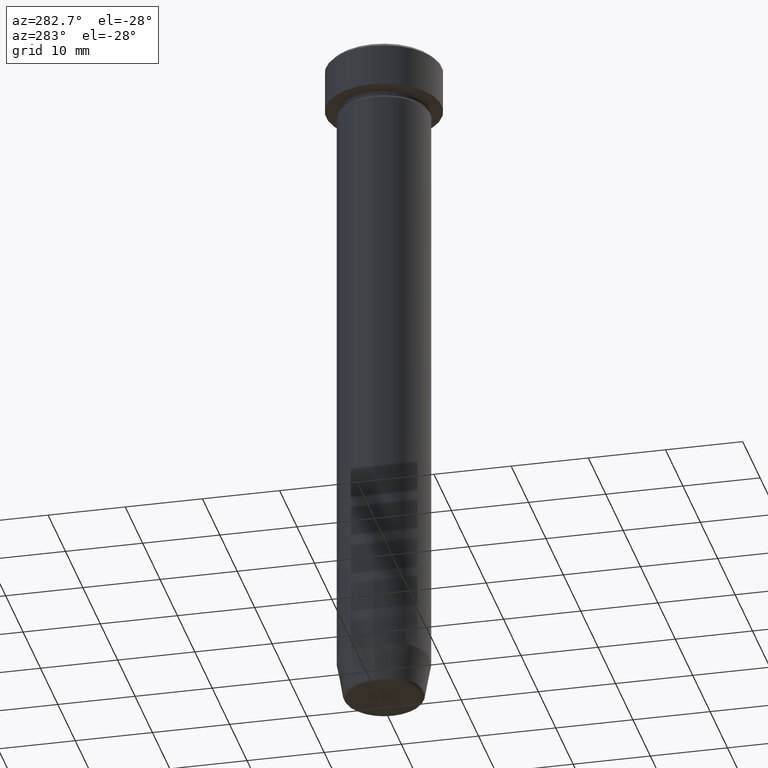
[diagram: clean part render]
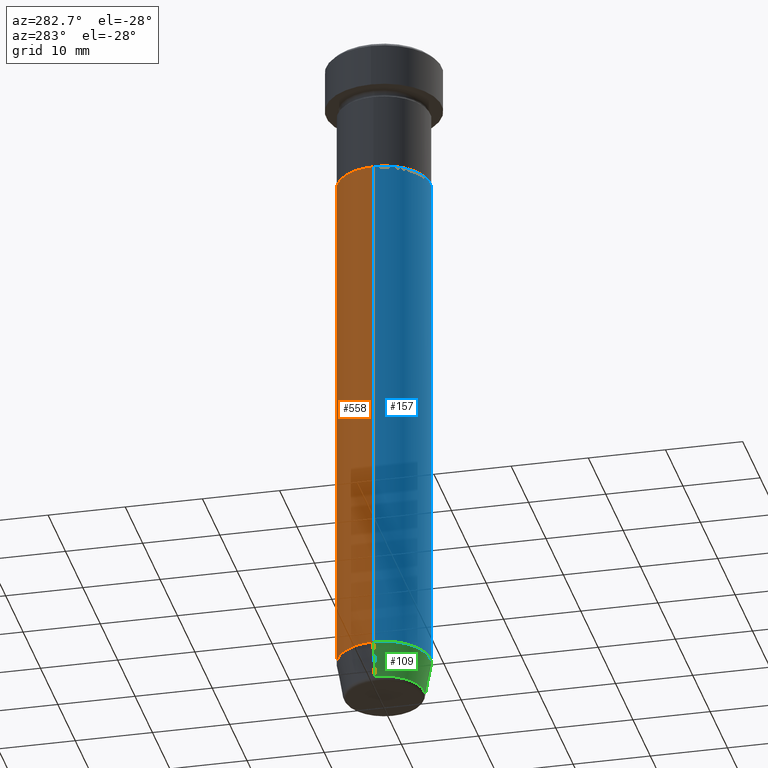
[diagram: same view with three faces highlighted in distinct colors, each labeled with its STEP entity id]
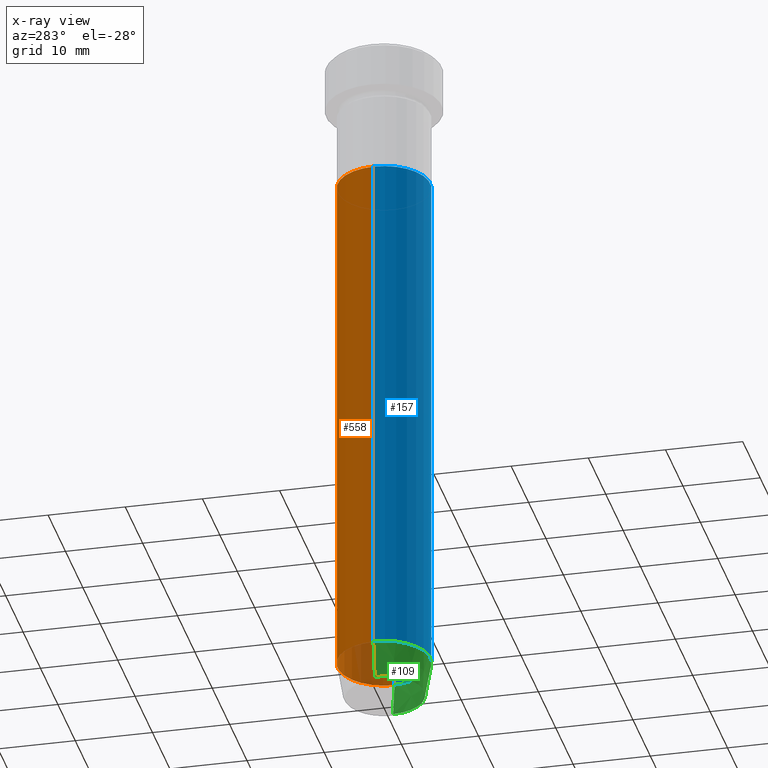
[diagram: x-ray of the same camera — body ghosted, the three highlighted faces saturated]
A machine part, auxiliary view with three faces highlighted in distinct colors.
The next image is the same camera in x-ray (body ghosted, the three faces saturated) — at least one of them is partly hidden behind the body in this view.
Their STEP definitions:

[orange] entity #558 — the highlighted cylindrical surface (partial cylindrical patch) has radius 6 mm, axis along (-0, -0, 1).
#1 = EDGE_LOOP ( 'NONE', ( #160, #596, #99, #465 ) ) ;
#26 = CARTESIAN_POINT ( 'NONE',  ( -6.000000000000000000, 7.347880794884119736E-16, 0.000000000000000000 ) ) ;
#30 = LINE ( 'NONE', #26, #560 ) ;
#75 = DIRECTION ( 'NONE',  ( -0.000000000000000000, -0.000000000000000000, 1.000000000000000000 ) ) ;
#96 = CARTESIAN_POINT ( 'NONE',  ( 0.000000000000000000, 0.000000000000000000, -17.00000000000000000 ) ) ;
#99 = ORIENTED_EDGE ( 'NONE', *, *, #335, .F. ) ;
#134 = CARTESIAN_POINT ( 'NONE',  ( 0.000000000000000000, 0.000000000000000000, 0.000000000000000000 ) ) ;
#139 = DIRECTION ( 'NONE',  ( -0.000000000000000000, -0.000000000000000000, 1.000000000000000000 ) ) ;
#140 = VERTEX_POINT ( 'NONE', #450 ) ;
#155 = AXIS2_PLACEMENT_3D ( 'NONE', #172, #309, #554 ) ;
#160 = ORIENTED_EDGE ( 'NONE', *, *, #164, .T. ) ;
#163 = CIRCLE ( 'NONE', #155, 6.000000000000000000 ) ;
#164 = EDGE_CURVE ( 'NONE', #542, #408, #163, .T. ) ;
#172 = CARTESIAN_POINT ( 'NONE',  ( 0.000000000000000000, 0.000000000000000000, -84.99999999999998579 ) ) ;
#173 = CARTESIAN_POINT ( 'NONE',  ( -6.000000000000000000, 7.347880794884119736E-16, -17.00000000000000000 ) ) ;
#184 = VECTOR ( 'NONE', #235, 1000.000000000000000 ) ;
#201 = AXIS2_PLACEMENT_3D ( 'NONE', #96, #287, #333 ) ;
#218 = CARTESIAN_POINT ( 'NONE',  ( -6.000000000000000000, 7.347880794884119736E-16, -84.99999999999998579 ) ) ;
#234 = CIRCLE ( 'NONE', #201, 6.000000000000000000 ) ;
#235 = DIRECTION ( 'NONE',  ( -0.000000000000000000, -0.000000000000000000, 1.000000000000000000 ) ) ;
#263 = AXIS2_PLACEMENT_3D ( 'NONE', #134, #139, #464 ) ;
#280 = CYLINDRICAL_SURFACE ( 'NONE', #263, 6.000000000000000000 ) ;
#287 = DIRECTION ( 'NONE',  ( -0.000000000000000000, -0.000000000000000000, 1.000000000000000000 ) ) ;
#288 = EDGE_CURVE ( 'NONE', #542, #140, #514, .T. ) ;
#309 = DIRECTION ( 'NONE',  ( -0.000000000000000000, -0.000000000000000000, 1.000000000000000000 ) ) ;
#333 = DIRECTION ( 'NONE',  ( 1.000000000000000000, 0.000000000000000000, 0.000000000000000000 ) ) ;
#335 = EDGE_CURVE ( 'NONE', #140, #423, #234, .T. ) ;
#357 = FACE_OUTER_BOUND ( 'NONE', #1, .T. ) ;
#389 = EDGE_CURVE ( 'NONE', #408, #423, #30, .T. ) ;
#408 = VERTEX_POINT ( 'NONE', #218 ) ;
#423 = VERTEX_POINT ( 'NONE', #173 ) ;
#450 = CARTESIAN_POINT ( 'NONE',  ( 6.000000000000000000, 0.000000000000000000, -17.00000000000000000 ) ) ;
#464 = DIRECTION ( 'NONE',  ( 1.000000000000000000, 0.000000000000000000, 0.000000000000000000 ) ) ;
#465 = ORIENTED_EDGE ( 'NONE', *, *, #288, .F. ) ;
#474 = CARTESIAN_POINT ( 'NONE',  ( 6.000000000000000000, 0.000000000000000000, 0.000000000000000000 ) ) ;
#514 = LINE ( 'NONE', #474, #184 ) ;
#542 = VERTEX_POINT ( 'NONE', #585 ) ;
#554 = DIRECTION ( 'NONE',  ( 1.000000000000000000, 0.000000000000000000, 0.000000000000000000 ) ) ;
#558 = ADVANCED_FACE ( 'NONE', ( #357 ), #280, .T. ) ;
#560 = VECTOR ( 'NONE', #75, 1000.000000000000000 ) ;
#585 = CARTESIAN_POINT ( 'NONE',  ( 6.000000000000000000, 0.000000000000000000, -84.99999999999998579 ) ) ;
#596 = ORIENTED_EDGE ( 'NONE', *, *, #389, .T. ) ;

[blue] entity #157 — the highlighted cylindrical surface (partial cylindrical patch) has radius 6 mm, axis along (-0, -0, 1).
#26 = CARTESIAN_POINT ( 'NONE',  ( -6.000000000000000000, 7.347880794884119736E-16, 0.000000000000000000 ) ) ;
#30 = LINE ( 'NONE', #26, #560 ) ;
#31 = CYLINDRICAL_SURFACE ( 'NONE', #136, 6.000000000000000000 ) ;
#60 = ORIENTED_EDGE ( 'NONE', *, *, #379, .F. ) ;
#63 = DIRECTION ( 'NONE',  ( -0.000000000000000000, -0.000000000000000000, 1.000000000000000000 ) ) ;
#71 = CARTESIAN_POINT ( 'NONE',  ( 0.000000000000000000, 0.000000000000000000, -17.00000000000000000 ) ) ;
#75 = DIRECTION ( 'NONE',  ( -0.000000000000000000, -0.000000000000000000, 1.000000000000000000 ) ) ;
#116 = EDGE_CURVE ( 'NONE', #408, #542, #529, .T. ) ;
#118 = FACE_OUTER_BOUND ( 'NONE', #255, .T. ) ;
#136 = AXIS2_PLACEMENT_3D ( 'NONE', #215, #584, #496 ) ;
#140 = VERTEX_POINT ( 'NONE', #450 ) ;
#147 = ORIENTED_EDGE ( 'NONE', *, *, #389, .F. ) ;
#157 = ADVANCED_FACE ( 'NONE', ( #118 ), #31, .T. ) ;
#173 = CARTESIAN_POINT ( 'NONE',  ( -6.000000000000000000, 7.347880794884119736E-16, -17.00000000000000000 ) ) ;
#184 = VECTOR ( 'NONE', #235, 1000.000000000000000 ) ;
#211 = AXIS2_PLACEMENT_3D ( 'NONE', #339, #63, #524 ) ;
#215 = CARTESIAN_POINT ( 'NONE',  ( 0.000000000000000000, 0.000000000000000000, 0.000000000000000000 ) ) ;
#218 = CARTESIAN_POINT ( 'NONE',  ( -6.000000000000000000, 7.347880794884119736E-16, -84.99999999999998579 ) ) ;
#226 = AXIS2_PLACEMENT_3D ( 'NONE', #71, #254, #453 ) ;
#235 = DIRECTION ( 'NONE',  ( -0.000000000000000000, -0.000000000000000000, 1.000000000000000000 ) ) ;
#254 = DIRECTION ( 'NONE',  ( -0.000000000000000000, -0.000000000000000000, 1.000000000000000000 ) ) ;
#255 = EDGE_LOOP ( 'NONE', ( #147, #347, #570, #60 ) ) ;
#288 = EDGE_CURVE ( 'NONE', #542, #140, #514, .T. ) ;
#339 = CARTESIAN_POINT ( 'NONE',  ( 0.000000000000000000, 0.000000000000000000, -84.99999999999998579 ) ) ;
#347 = ORIENTED_EDGE ( 'NONE', *, *, #116, .T. ) ;
#379 = EDGE_CURVE ( 'NONE', #423, #140, #395, .T. ) ;
#389 = EDGE_CURVE ( 'NONE', #408, #423, #30, .T. ) ;
#395 = CIRCLE ( 'NONE', #226, 6.000000000000000000 ) ;
#408 = VERTEX_POINT ( 'NONE', #218 ) ;
#423 = VERTEX_POINT ( 'NONE', #173 ) ;
#450 = CARTESIAN_POINT ( 'NONE',  ( 6.000000000000000000, 0.000000000000000000, -17.00000000000000000 ) ) ;
#453 = DIRECTION ( 'NONE',  ( 1.000000000000000000, 0.000000000000000000, 0.000000000000000000 ) ) ;
#474 = CARTESIAN_POINT ( 'NONE',  ( 6.000000000000000000, 0.000000000000000000, 0.000000000000000000 ) ) ;
#496 = DIRECTION ( 'NONE',  ( 1.000000000000000000, 0.000000000000000000, 0.000000000000000000 ) ) ;
#514 = LINE ( 'NONE', #474, #184 ) ;
#524 = DIRECTION ( 'NONE',  ( 1.000000000000000000, 0.000000000000000000, 0.000000000000000000 ) ) ;
#529 = CIRCLE ( 'NONE', #211, 6.000000000000000000 ) ;
#542 = VERTEX_POINT ( 'NONE', #585 ) ;
#560 = VECTOR ( 'NONE', #75, 1000.000000000000000 ) ;
#570 = ORIENTED_EDGE ( 'NONE', *, *, #288, .T. ) ;
#584 = DIRECTION ( 'NONE',  ( -0.000000000000000000, -0.000000000000000000, 1.000000000000000000 ) ) ;
#585 = CARTESIAN_POINT ( 'NONE',  ( 6.000000000000000000, 0.000000000000000000, -84.99999999999998579 ) ) ;

[green] entity #109 — the highlighted conical surface has half-angle 10 deg.
#15 = CARTESIAN_POINT ( 'NONE',  ( 5.118365096457672792, 0.000000000000000000, -90.00000000000000000 ) ) ;
#40 = AXIS2_PLACEMENT_3D ( 'NONE', #213, #350, #384 ) ;
#63 = DIRECTION ( 'NONE',  ( -0.000000000000000000, -0.000000000000000000, 1.000000000000000000 ) ) ;
#66 = DIRECTION ( 'NONE',  ( 0.1736481776669306087, 0.000000000000000000, 0.9848077530122081313 ) ) ;
#76 = CARTESIAN_POINT ( 'NONE',  ( -5.118365096457672792, 6.268189432244423169E-16, -90.00000000000000000 ) ) ;
#84 = EDGE_CURVE ( 'NONE', #476, #542, #305, .T. ) ;
#102 = EDGE_CURVE ( 'NONE', #517, #476, #519, .T. ) ;
#109 = ADVANCED_FACE ( 'NONE', ( #341 ), #135, .T. ) ;
#110 = DIRECTION ( 'NONE',  ( 1.000000000000000000, 0.000000000000000000, 0.000000000000000000 ) ) ;
#116 = EDGE_CURVE ( 'NONE', #408, #542, #529, .T. ) ;
#135 = CONICAL_SURFACE ( 'NONE', #478, 5.118365096457672792, 0.1745329251994331976 ) ;
#149 = EDGE_CURVE ( 'NONE', #517, #408, #402, .T. ) ;
#156 = DIRECTION ( 'NONE',  ( -0.000000000000000000, -0.000000000000000000, 1.000000000000000000 ) ) ;
#211 = AXIS2_PLACEMENT_3D ( 'NONE', #339, #63, #524 ) ;
#213 = CARTESIAN_POINT ( 'NONE',  ( 0.000000000000000000, 0.000000000000000000, -89.58682408883346682 ) ) ;
#218 = CARTESIAN_POINT ( 'NONE',  ( -6.000000000000000000, 7.347880794884119736E-16, -84.99999999999998579 ) ) ;
#224 = VECTOR ( 'NONE', #66, 999.9999999999998863 ) ;
#237 = ORIENTED_EDGE ( 'NONE', *, *, #116, .F. ) ;
#251 = VECTOR ( 'NONE', #534, 999.9999999999998863 ) ;
#305 = LINE ( 'NONE', #15, #224 ) ;
#339 = CARTESIAN_POINT ( 'NONE',  ( 0.000000000000000000, 0.000000000000000000, -84.99999999999998579 ) ) ;
#341 = FACE_OUTER_BOUND ( 'NONE', #553, .T. ) ;
#350 = DIRECTION ( 'NONE',  ( -0.000000000000000000, -0.000000000000000000, 1.000000000000000000 ) ) ;
#375 = ORIENTED_EDGE ( 'NONE', *, *, #84, .T. ) ;
#384 = DIRECTION ( 'NONE',  ( -1.000000000000000000, 0.000000000000000000, 0.000000000000000000 ) ) ;
#402 = LINE ( 'NONE', #76, #251 ) ;
#407 = CARTESIAN_POINT ( 'NONE',  ( -5.191219157375138060, 6.852645359818002966E-16, -89.58682408883346682 ) ) ;
#408 = VERTEX_POINT ( 'NONE', #218 ) ;
#414 = CARTESIAN_POINT ( 'NONE',  ( 5.191219157375138060, 0.000000000000000000, -89.58682408883346682 ) ) ;
#435 = ORIENTED_EDGE ( 'NONE', *, *, #149, .F. ) ;
#476 = VERTEX_POINT ( 'NONE', #414 ) ;
#478 = AXIS2_PLACEMENT_3D ( 'NONE', #567, #156, #110 ) ;
#500 = ORIENTED_EDGE ( 'NONE', *, *, #102, .T. ) ;
#517 = VERTEX_POINT ( 'NONE', #407 ) ;
#519 = CIRCLE ( 'NONE', #40, 5.191219157375138060 ) ;
#524 = DIRECTION ( 'NONE',  ( 1.000000000000000000, 0.000000000000000000, 0.000000000000000000 ) ) ;
#529 = CIRCLE ( 'NONE', #211, 6.000000000000000000 ) ;
#534 = DIRECTION ( 'NONE',  ( -0.1736481776669306087, 2.126576849575774688E-17, 0.9848077530122081313 ) ) ;
#542 = VERTEX_POINT ( 'NONE', #585 ) ;
#553 = EDGE_LOOP ( 'NONE', ( #435, #500, #375, #237 ) ) ;
#567 = CARTESIAN_POINT ( 'NONE',  ( 0.000000000000000000, 0.000000000000000000, -90.00000000000000000 ) ) ;
#585 = CARTESIAN_POINT ( 'NONE',  ( 6.000000000000000000, 0.000000000000000000, -84.99999999999998579 ) ) ;